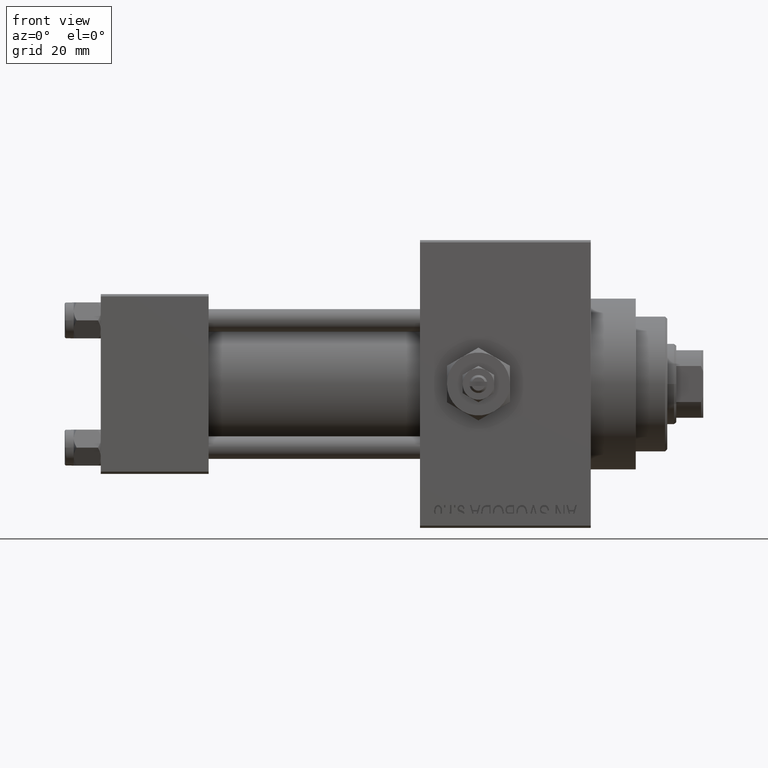
[diagram: clean part render]
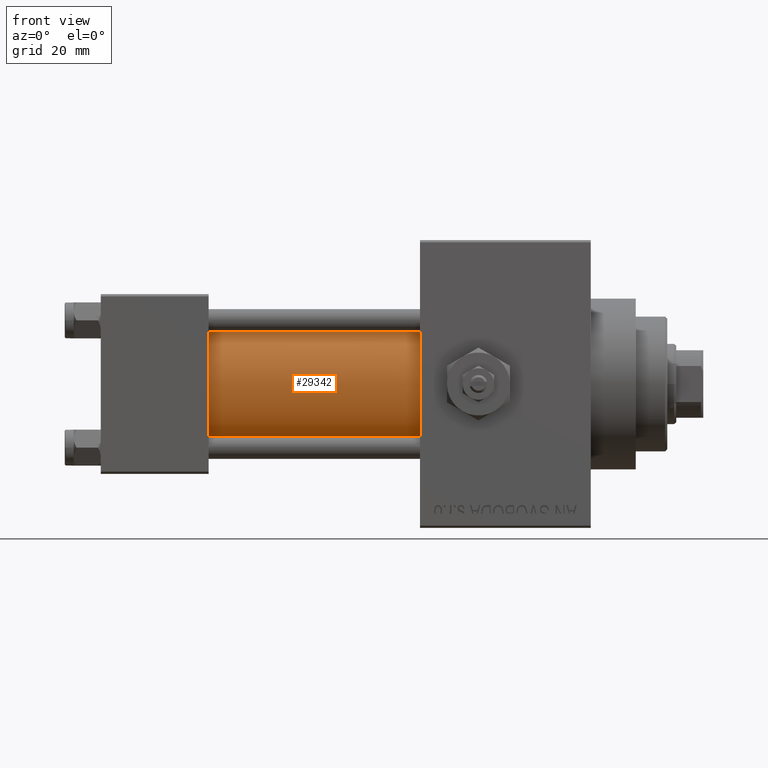
[diagram: same view with one face highlighted and labeled with its STEP entity id]
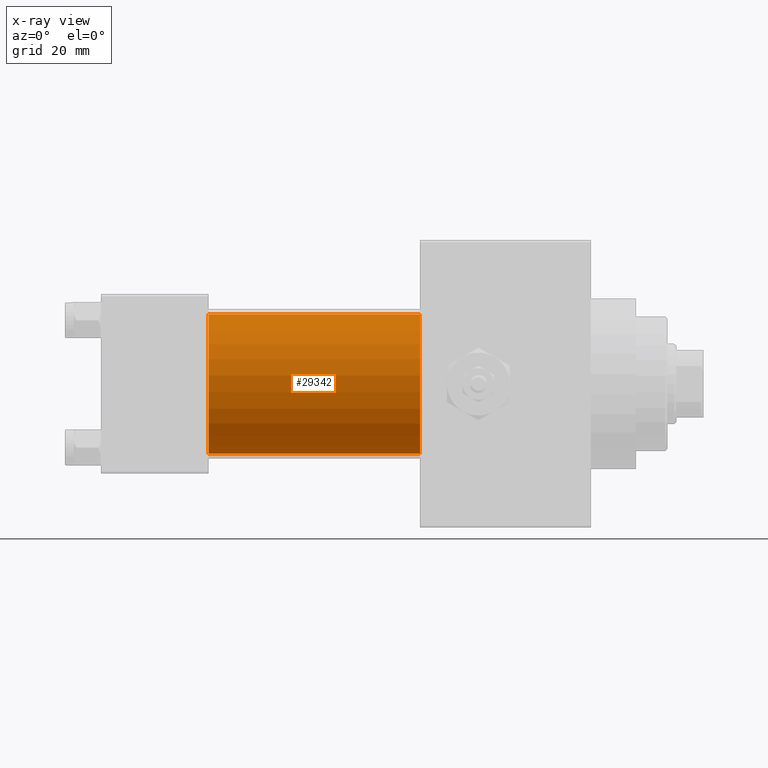
[diagram: x-ray of the same camera — body ghosted, the highlighted face saturated]
A machine part, front view. The second image highlights one B-rep face of the part: STEP entity #29342.
The next image is the same camera in x-ray: the body ghosted, the highlighted face saturated — about 0% of this face is hidden behind the body in this view.
In plain terms, the highlighted cylindrical surface (partial cylindrical patch) has radius 15.5 mm, axis along (-1, -0, -0).
Its self-contained STEP definition (entity closure, byte-faithful):
#433 = DIRECTION ( 'NONE',  ( -1.000000000000000000, -0.000000000000000000, -0.000000000000000000 ) ) ;
#3292 = LINE ( 'NONE', #18300, #24486 ) ;
#4607 = CARTESIAN_POINT ( 'NONE',  ( 71.00000000000001421, -2.602085213965210642E-15, 0.000000000000000000 ) ) ;
#8096 = EDGE_CURVE ( 'NONE', #12835, #24194, #3292, .T. ) ;
#8128 = CARTESIAN_POINT ( 'NONE',  ( 71.00000000000001421, -2.602085213965210642E-15, 15.50000000000000000 ) ) ;
#8621 = CARTESIAN_POINT ( 'NONE',  ( 24.00000000000000000, -2.602085213965210642E-15, 0.000000000000000000 ) ) ;
#11295 = CIRCLE ( 'NONE', #34084, 15.50000000000000000 ) ;
#12835 = VERTEX_POINT ( 'NONE', #8128 ) ;
#13309 = DIRECTION ( 'NONE',  ( 1.000000000000000000, 0.000000000000000000, 0.000000000000000000 ) ) ;
#15090 = EDGE_CURVE ( 'NONE', #42439, #28699, #26737, .T. ) ;
#18300 = CARTESIAN_POINT ( 'NONE',  ( 71.00000000000001421, -2.602085213965210642E-15, 15.50000000000000000 ) ) ;
#18396 = CARTESIAN_POINT ( 'NONE',  ( 71.00000000000001421, -7.038826752868131828E-16, -15.50000000000000000 ) ) ;
#20576 = EDGE_LOOP ( 'NONE', ( #35546, #21953, #39333, #40218 ) ) ;
#21953 = ORIENTED_EDGE ( 'NONE', *, *, #48471, .F. ) ;
#24194 = VERTEX_POINT ( 'NONE', #27734 ) ;
#24486 = VECTOR ( 'NONE', #33302, 1000.000000000000000 ) ;
#26274 = CYLINDRICAL_SURFACE ( 'NONE', #29778, 15.50000000000000000 ) ;
#26737 = LINE ( 'NONE', #41025, #44373 ) ;
#27734 = CARTESIAN_POINT ( 'NONE',  ( 24.00000000000000000, -2.602085213965210642E-15, 15.50000000000000000 ) ) ;
#28699 = VERTEX_POINT ( 'NONE', #28916 ) ;
#28916 = CARTESIAN_POINT ( 'NONE',  ( 24.00000000000000000, -7.038826752868131828E-16, -15.50000000000000000 ) ) ;
#29342 = ADVANCED_FACE ( 'NONE', ( #30443 ), #26274, .T. ) ;
#29778 = AXIS2_PLACEMENT_3D ( 'NONE', #4607, #433, #45475 ) ;
#30443 = FACE_OUTER_BOUND ( 'NONE', #20576, .T. ) ;
#30760 = DIRECTION ( 'NONE',  ( 0.000000000000000000, 0.000000000000000000, 1.000000000000000000 ) ) ;
#33021 = CIRCLE ( 'NONE', #39330, 15.50000000000000000 ) ;
#33302 = DIRECTION ( 'NONE',  ( -1.000000000000000000, -0.000000000000000000, -0.000000000000000000 ) ) ;
#34084 = AXIS2_PLACEMENT_3D ( 'NONE', #35686, #13309, #35927 ) ;
#34450 = DIRECTION ( 'NONE',  ( 1.000000000000000000, 0.000000000000000000, 0.000000000000000000 ) ) ;
#35546 = ORIENTED_EDGE ( 'NONE', *, *, #15090, .F. ) ;
#35686 = CARTESIAN_POINT ( 'NONE',  ( 71.00000000000001421, -2.602085213965210642E-15, 0.000000000000000000 ) ) ;
#35927 = DIRECTION ( 'NONE',  ( 0.000000000000000000, 0.000000000000000000, -1.000000000000000000 ) ) ;
#38047 = EDGE_CURVE ( 'NONE', #24194, #28699, #33021, .T. ) ;
#39330 = AXIS2_PLACEMENT_3D ( 'NONE', #8621, #34450, #30760 ) ;
#39333 = ORIENTED_EDGE ( 'NONE', *, *, #8096, .T. ) ;
#40218 = ORIENTED_EDGE ( 'NONE', *, *, #38047, .T. ) ;
#40778 = DIRECTION ( 'NONE',  ( -1.000000000000000000, -0.000000000000000000, -0.000000000000000000 ) ) ;
#41025 = CARTESIAN_POINT ( 'NONE',  ( 71.00000000000001421, -7.038826752868131828E-16, -15.50000000000000000 ) ) ;
#42439 = VERTEX_POINT ( 'NONE', #18396 ) ;
#44373 = VECTOR ( 'NONE', #40778, 1000.000000000000000 ) ;
#45475 = DIRECTION ( 'NONE',  ( 0.000000000000000000, 0.000000000000000000, 1.000000000000000000 ) ) ;
#48471 = EDGE_CURVE ( 'NONE', #12835, #42439, #11295, .T. ) ;